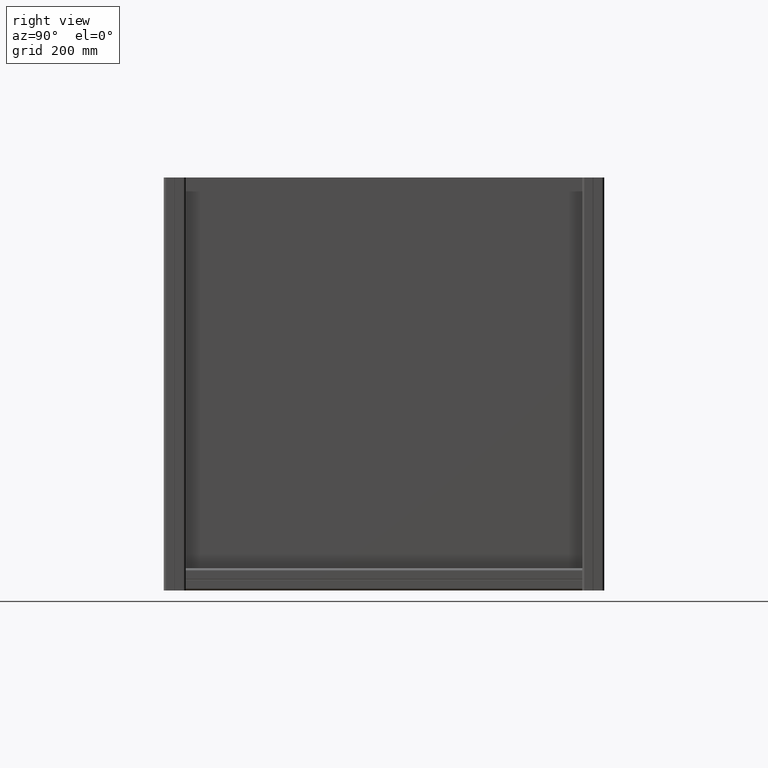
[diagram: clean part render]
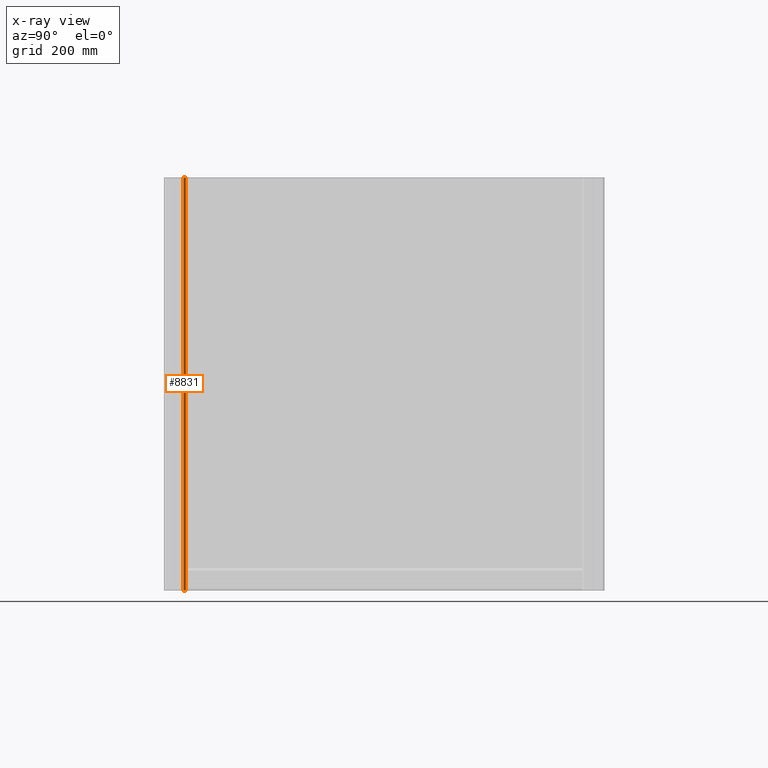
[diagram: x-ray — body ghosted, one internal face saturated and labeled with its STEP entity id]
A machine part, right view, then the same camera in x-ray: the body is ghosted and one INTERNAL B-rep face — a face not visible from any outside direction — is saturated and labeled: STEP entity #8831.
In plain terms, the highlighted cylindrical surface (edge-blend (fillet) strip) has radius 4.5 mm, axis along (0, 0, -1).
Its self-contained STEP definition (entity closure, byte-faithful):
#423 = CARTESIAN_POINT ( 'NONE',  ( 15.50000000000000000, 20.00000000000180123, -150.0000000000000000 ) ) ;
#891 = CYLINDRICAL_SURFACE ( 'NONE', #2208, 4.500000000000000888 ) ;
#946 = CARTESIAN_POINT ( 'NONE',  ( 15.50000000000000000, 15.50000000000180123, 600.0000000000000000 ) ) ;
#1459 = CARTESIAN_POINT ( 'NONE',  ( 15.50000000000000000, 20.00000000000180123, 800.0000000000000000 ) ) ;
#1543 = ORIENTED_EDGE ( 'NONE', *, *, #12213, .T. ) ;
#2094 = LINE ( 'NONE', #12119, #7665 ) ;
#2143 = DIRECTION ( 'NONE',  ( -1.000000000000000000, 0.000000000000000000, 0.000000000000000000 ) ) ;
#2208 = AXIS2_PLACEMENT_3D ( 'NONE', #12337, #14829, #4408 ) ;
#2259 = CARTESIAN_POINT ( 'NONE',  ( 15.50000000000000000, 15.50000000000180123, -150.0000000000000000 ) ) ;
#2303 = VECTOR ( 'NONE', #11473, 1000.000000000000000 ) ;
#2586 = ORIENTED_EDGE ( 'NONE', *, *, #14915, .T. ) ;
#3242 = VERTEX_POINT ( 'NONE', #423 ) ;
#3275 = ORIENTED_EDGE ( 'NONE', *, *, #9989, .F. ) ;
#3583 = VERTEX_POINT ( 'NONE', #6584 ) ;
#3606 = DIRECTION ( 'NONE',  ( 0.000000000000000000, 0.000000000000000000, 1.000000000000000000 ) ) ;
#4408 = DIRECTION ( 'NONE',  ( -1.000000000000000000, 0.000000000000000000, 0.000000000000000000 ) ) ;
#4520 = VERTEX_POINT ( 'NONE', #14197 ) ;
#6584 = CARTESIAN_POINT ( 'NONE',  ( 20.00000000000000000, 15.50000000000180123, -150.0000000000000000 ) ) ;
#6733 = AXIS2_PLACEMENT_3D ( 'NONE', #2259, #16072, #2143 ) ;
#7392 = CIRCLE ( 'NONE', #6733, 4.500000000000000888 ) ;
#7598 = LINE ( 'NONE', #1459, #2303 ) ;
#7665 = VECTOR ( 'NONE', #15644, 1000.000000000000000 ) ;
#8391 = AXIS2_PLACEMENT_3D ( 'NONE', #946, #3606, #12531 ) ;
#8831 = ADVANCED_FACE ( 'NONE', ( #12025 ), #891, .T. ) ;
#9079 = CARTESIAN_POINT ( 'NONE',  ( 15.50000000000000000, 20.00000000000180123, 600.0000000000000000 ) ) ;
#9653 = EDGE_LOOP ( 'NONE', ( #2586, #12545, #1543, #3275 ) ) ;
#9975 = CIRCLE ( 'NONE', #8391, 4.500000000000000888 ) ;
#9989 = EDGE_CURVE ( 'NONE', #3242, #3583, #7392, .T. ) ;
#11473 = DIRECTION ( 'NONE',  ( 0.000000000000000000, 0.000000000000000000, 1.000000000000000000 ) ) ;
#12025 = FACE_OUTER_BOUND ( 'NONE', #9653, .T. ) ;
#12119 = CARTESIAN_POINT ( 'NONE',  ( 20.00000000000000000, 15.50000000000180123, 800.0000000000000000 ) ) ;
#12213 = EDGE_CURVE ( 'NONE', #4520, #3583, #2094, .T. ) ;
#12337 = CARTESIAN_POINT ( 'NONE',  ( 15.50000000000000000, 15.50000000000180123, 800.0000000000000000 ) ) ;
#12531 = DIRECTION ( 'NONE',  ( 1.000000000000000000, 0.000000000000000000, 0.000000000000000000 ) ) ;
#12545 = ORIENTED_EDGE ( 'NONE', *, *, #13501, .F. ) ;
#13501 = EDGE_CURVE ( 'NONE', #4520, #13578, #9975, .T. ) ;
#13578 = VERTEX_POINT ( 'NONE', #9079 ) ;
#14197 = CARTESIAN_POINT ( 'NONE',  ( 20.00000000000000000, 15.50000000000180123, 600.0000000000000000 ) ) ;
#14829 = DIRECTION ( 'NONE',  ( 0.000000000000000000, 0.000000000000000000, -1.000000000000000000 ) ) ;
#14915 = EDGE_CURVE ( 'NONE', #3242, #13578, #7598, .T. ) ;
#15644 = DIRECTION ( 'NONE',  ( 0.000000000000000000, 0.000000000000000000, -1.000000000000000000 ) ) ;
#16072 = DIRECTION ( 'NONE',  ( 0.000000000000000000, 0.000000000000000000, -1.000000000000000000 ) ) ;